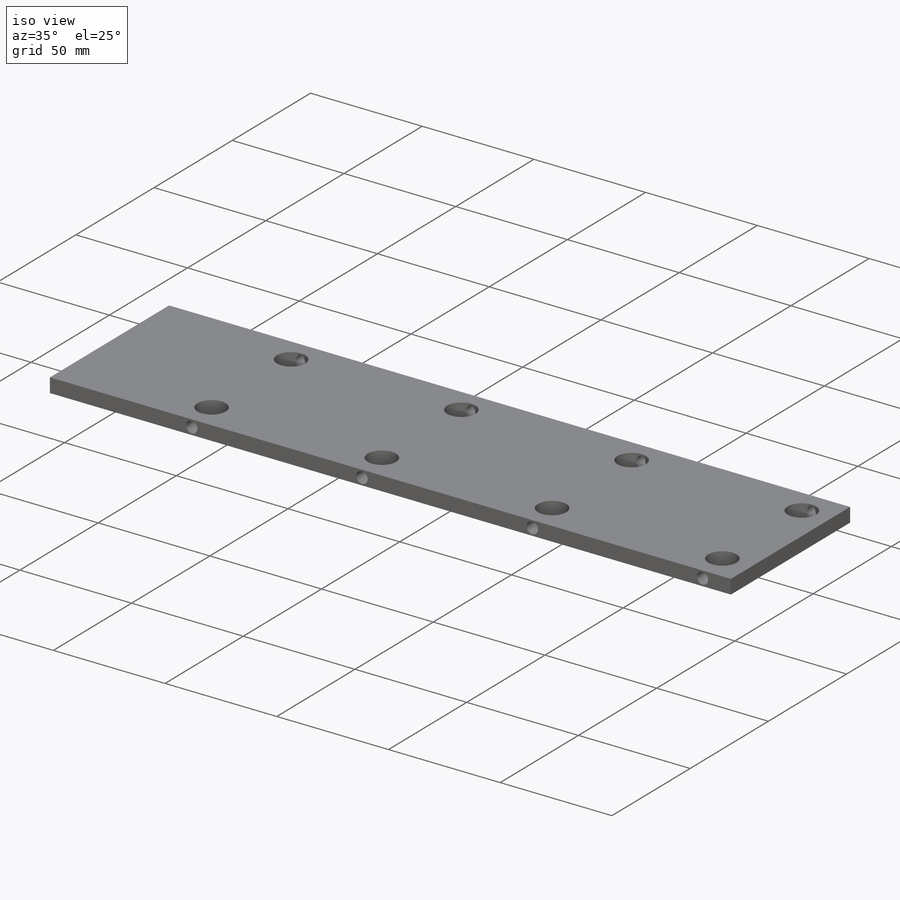
[diagram: iso view]
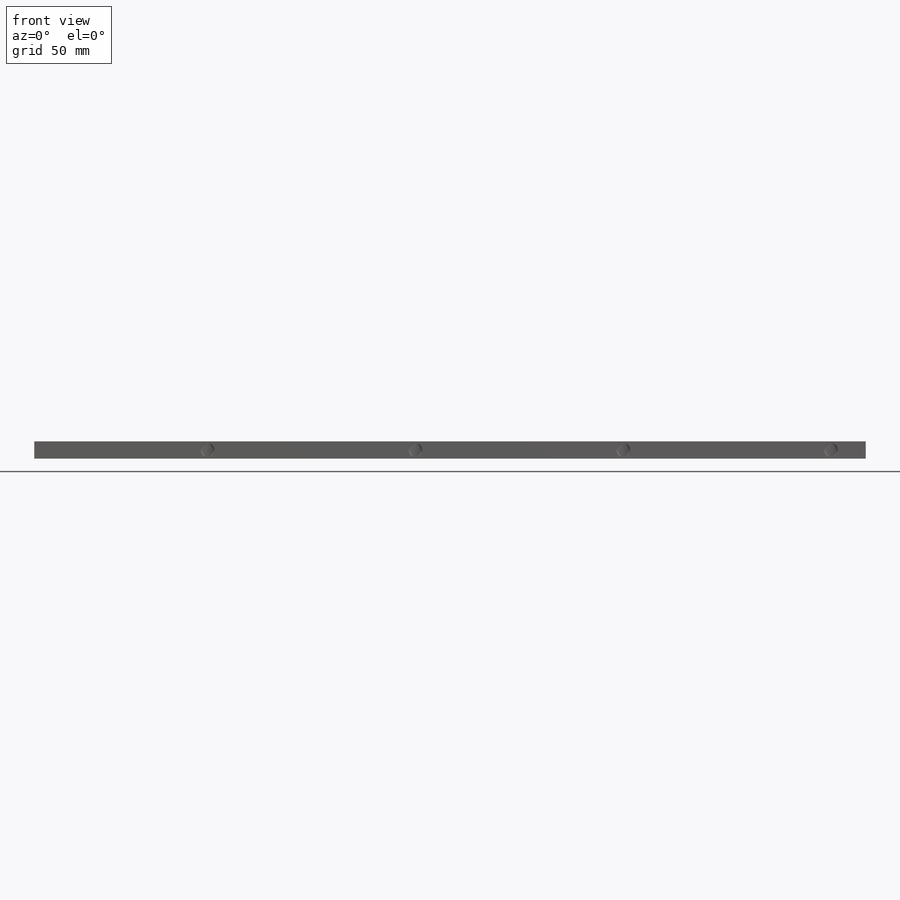
[diagram: front view]
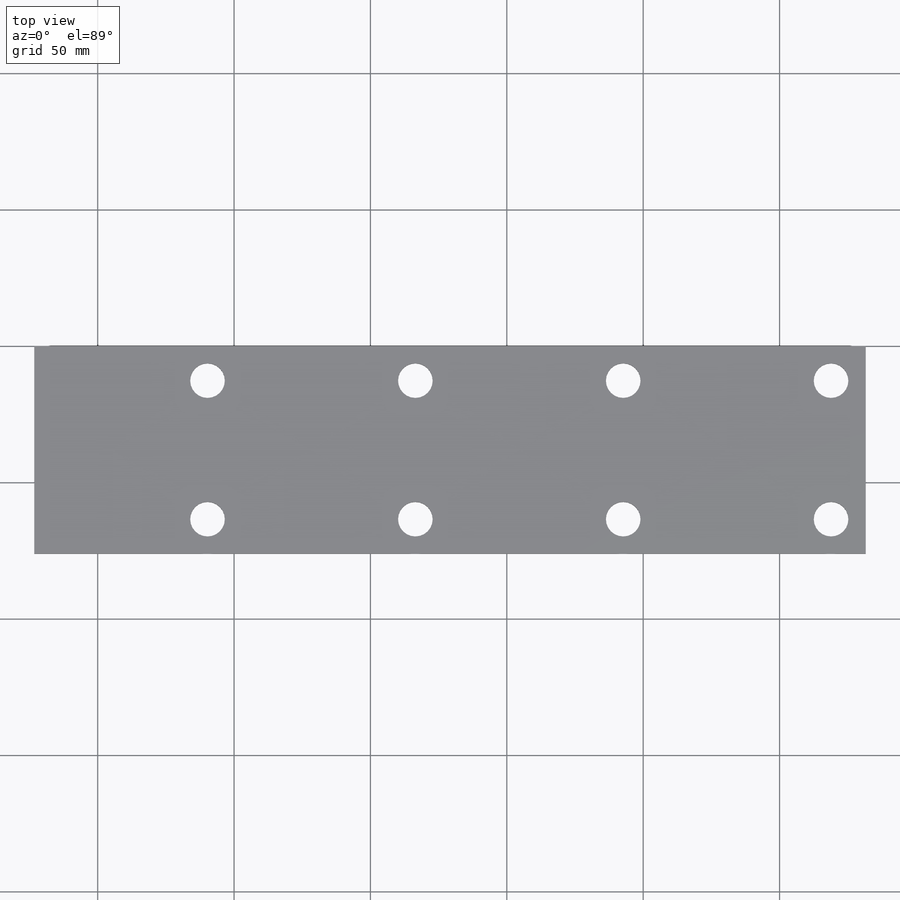
[diagram: top view]
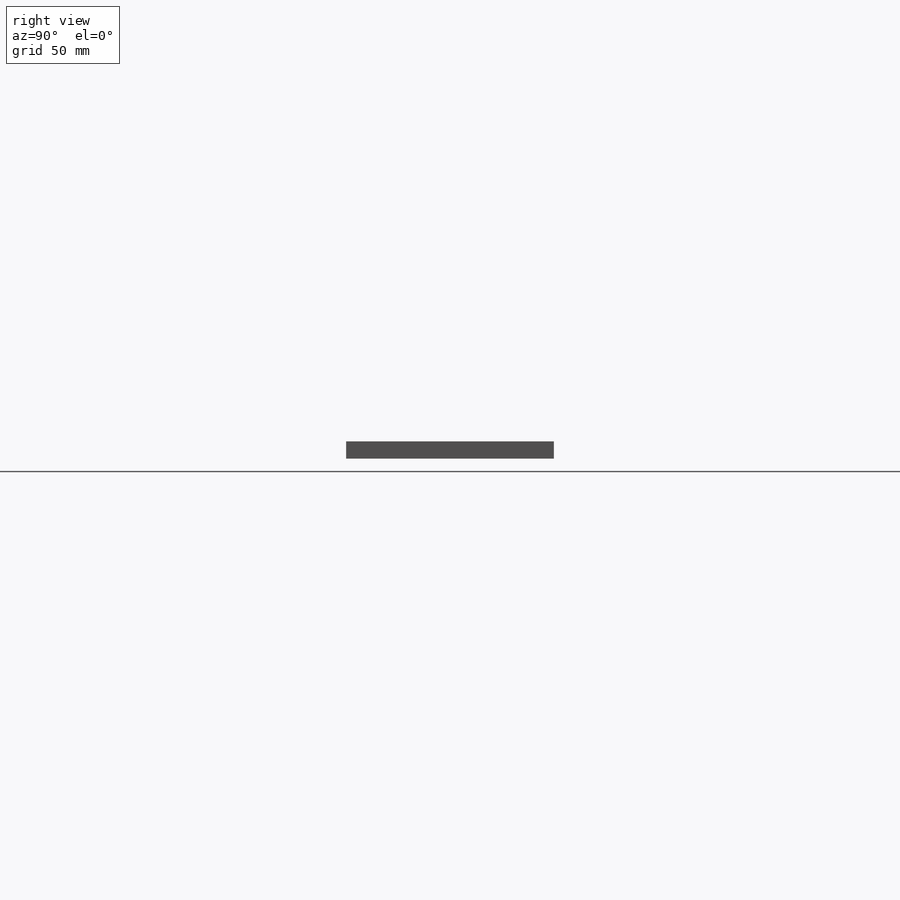
[diagram: right view]
SOLIDWORKS PART (.sldprt)
format: sldprt  version: not decoded by parser v0  size: 235,520 bytes
history: native  units: mm
features: sketch x4, pattern_linear x3, material x1, extrude x1, hole x1, cut_extrude x1, plane x1, mirror x1 (+16 scaffold rows collapsed)
feature tree (29):
  scaffold x16  (default folders/planes/origin — collapsed)
  material  "Material <not specified>"
  sketch  "Sketch1"  dims[D1=304.8mm D2=6.35mm]
  extrude  "Boss-Extrude1"  Depth=76.2mm
  hole  "#8 (0.199) Diameter Hole1"  Diameter=5.0546mm Depth=6.35mm
  sketch  "Sketch3"  dims[D1=3.175mm D2=12.7mm]
  sketch  "Sketch2"  dims[hole-wizard template sketch: 47 standard entries collapsed; hole parameters kept: c15.Hole Depth=6.35mm c15.D3=~14.816244mm c15.Drill Angle=118.0deg]
  pattern_linear  "LPattern1"  Count1=4 Count2=1 Spacing1=76.2mm Spacing2=2.54mm
  sketch  "Sketch4"  dims[D1=12.7mm D2=12.7mm D3=12.7mm]
  cut_extrude  "Cut-Extrude1"  [1 undecoded]
  pattern_linear  "LPattern2"  Count1=4 Count2=2 Spacing1=76.2mm Spacing2=50.8mm
  plane  "Plane1"  Offset=38.1mm
  mirror  "Mirror1"
  pattern_linear  "LPattern3"  Count1=4 Count2=1 Spacing1=76.2mm Spacing2=50.8mm
decode coverage: 9 of 11 modeling features carry decoded parameters
note: ~ marks probable driven/reference dimensions
note: 1 parameter value undecoded
note: suppression state not decoded; provenance and decode notes live in map.json
